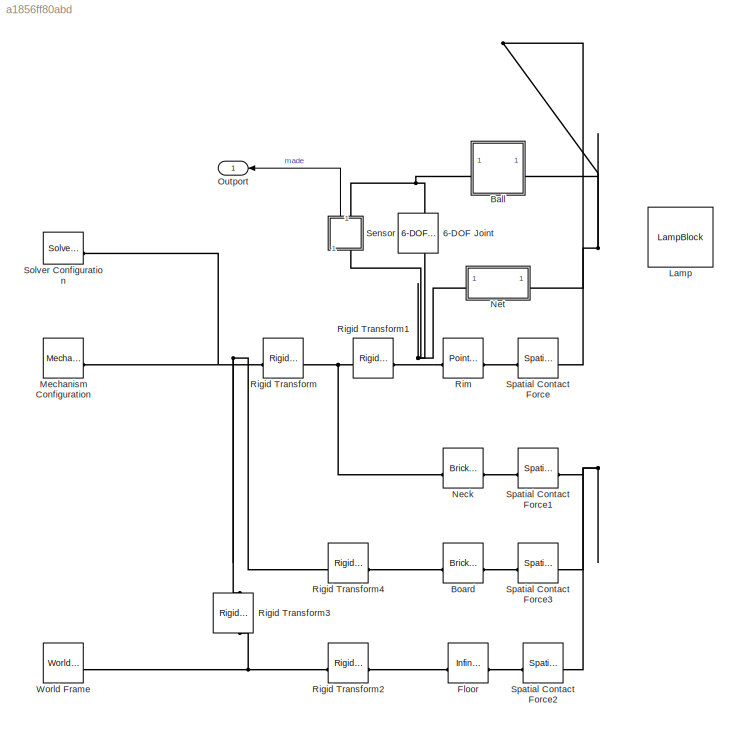
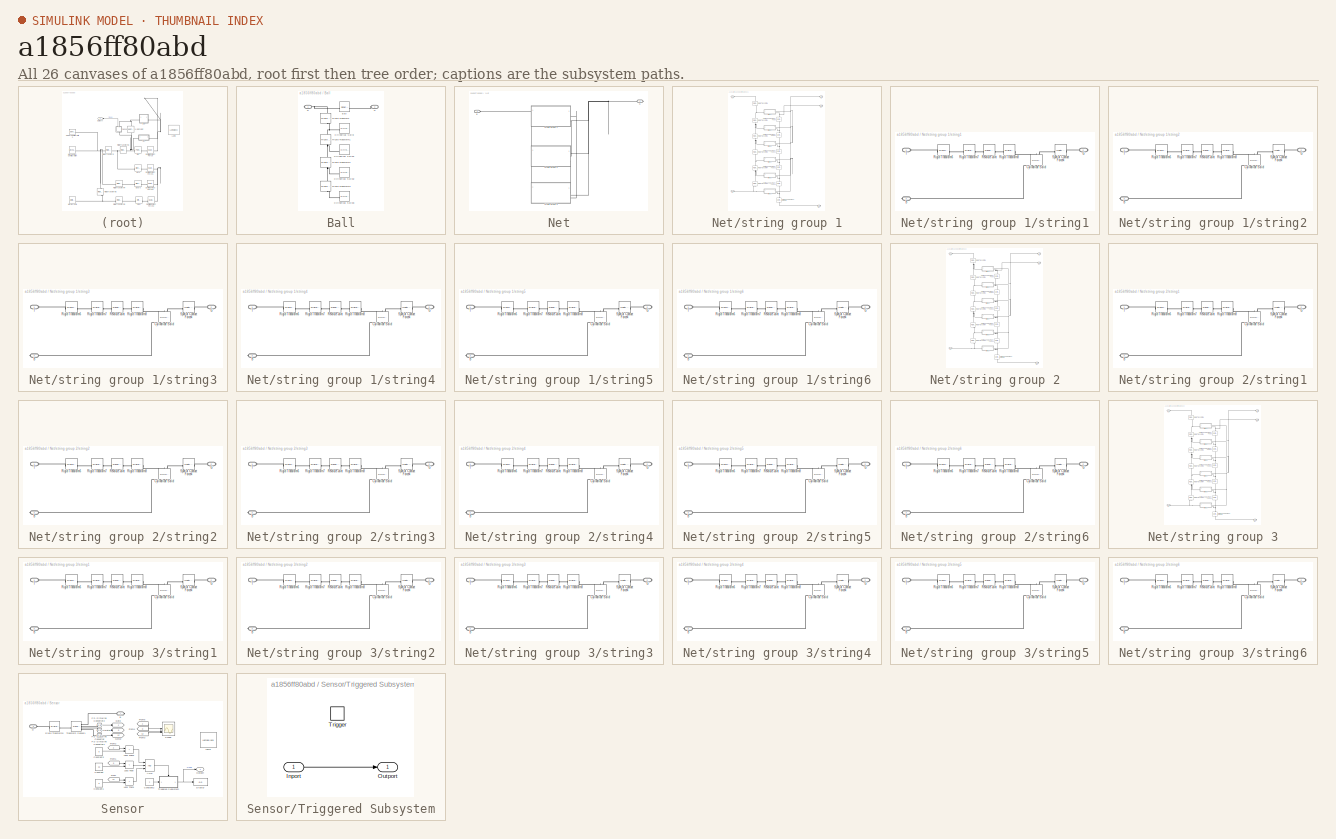
[diagram: thumbnail index - all 26 canvases of the model, root first then tree order]
MODEL slx_a1856ff80abd
KIND model
CONFIG AbsTol = 1e-3
CONFIG EnableMultiTasking = on
CONFIG FixedStep = auto
CONFIG MaxStep = 0.02
CONFIG MinStep = auto
CONFIG PreLoadFcn = init_basketball_shooting;
CONFIG RelTol = 1e-3
CONFIG SampleTimeConstraint = Unconstrained
CONFIG SolverName = VariableStepAuto
CONFIG StartTime = 0.0
CONFIG StopTime = 4
BLOCK [Reference] 6-DOF Joint  REF=sm_lib/Joints/6-DOF Joint
  NameLocation = right
  SourceBlock = sm_lib/Joints/6-DOF Joint
  SourceType = 6-DOF Joint
BLOCK [SubSystem] Ball
BLOCK [Reference] Ball/Ball  REF=sm_lib/Body Elements/Spherical Solid
  SourceBlock = sm_lib/Body Elements/Spherical Solid
  SourceType = Spherical Solid
BLOCK [Reference] Ball/Cylindrical Solid  REF=sm_lib/Body Elements/Cylindrical Solid
  SourceBlock = sm_lib/Body Elements/Cylindrical Solid
  SourceType = Cylindrical Solid
BLOCK [Reference] Ball/Cylindrical Solid1  REF=sm_lib/Body Elements/Cylindrical Solid
  SourceBlock = sm_lib/Body Elements/Cylindrical Solid
  SourceType = Cylindrical Solid
BLOCK [Reference] Ball/Cylindrical Solid2  REF=sm_lib/Body Elements/Cylindrical Solid
  SourceBlock = sm_lib/Body Elements/Cylindrical Solid
  SourceType = Cylindrical Solid
BLOCK [Reference] Ball/Cylindrical Solid3  REF=sm_lib/Body Elements/Cylindrical Solid
  SourceBlock = sm_lib/Body Elements/Cylindrical Solid
  SourceType = Cylindrical Solid
BLOCK [PMIOPort] Ball/G
  Port = 2
  Side = Left
BLOCK [PMIOPort] Ball/R
  Side = Right
BLOCK [Reference] Ball/Rigid Transform  REF=sm_lib/Frames and
Transforms/Rigid
Transform
  NameLocation = left
  SourceBlock = sm_lib/Frames and\nTransforms/Rigid\nTransform
  SourceType = Rigid\nTransform
BLOCK [Reference] Ball/Rigid Transform1  REF=sm_lib/Frames and
Transforms/Rigid
Transform
  NameLocation = left
  SourceBlock = sm_lib/Frames and\nTransforms/Rigid\nTransform
  SourceType = Rigid\nTransform
BLOCK [Reference] Ball/Rigid Transform2  REF=sm_lib/Frames and
Transforms/Rigid
Transform
  NameLocation = left
  SourceBlock = sm_lib/Frames and\nTransforms/Rigid\nTransform
  SourceType = Rigid\nTransform
BLOCK [Reference] Ball/Rigid Transform3  REF=sm_lib/Frames and
Transforms/Rigid
Transform
  NameLocation = left
  SourceBlock = sm_lib/Frames and\nTransforms/Rigid\nTransform
  SourceType = Rigid\nTransform
BLOCK [Reference] Board  REF=sm_lib/Body Elements/Brick Solid
  NameLocation = top
  SourceBlock = sm_lib/Body Elements/Brick Solid
  SourceType = Brick Solid
BLOCK [Reference] Floor  REF=sm_lib/Curves and Surfaces/Infinite Plane
  SourceBlock = sm_lib/Curves and Surfaces/Infinite Plane
  SourceType = Infinite Plane
BLOCK [LampBlock] Lamp
  LabelPosition = Hide
BLOCK [Reference] Mechanism Configuration  REF=sm_lib/Utilities/Mechanism
Configuration
  SourceBlock = sm_lib/Utilities/Mechanism\nConfiguration
  SourceType = Mechanism\nConfiguration
BLOCK [Reference] Neck  REF=sm_lib/Body Elements/Brick Solid
  NameLocation = top
  SourceBlock = sm_lib/Body Elements/Brick Solid
  SourceType = Brick Solid
BLOCK [SubSystem] Net
BLOCK [PMIOPort] Net/B
  Side = Left
BLOCK [PMIOPort] Net/G
  Port = 2
  Side = Right
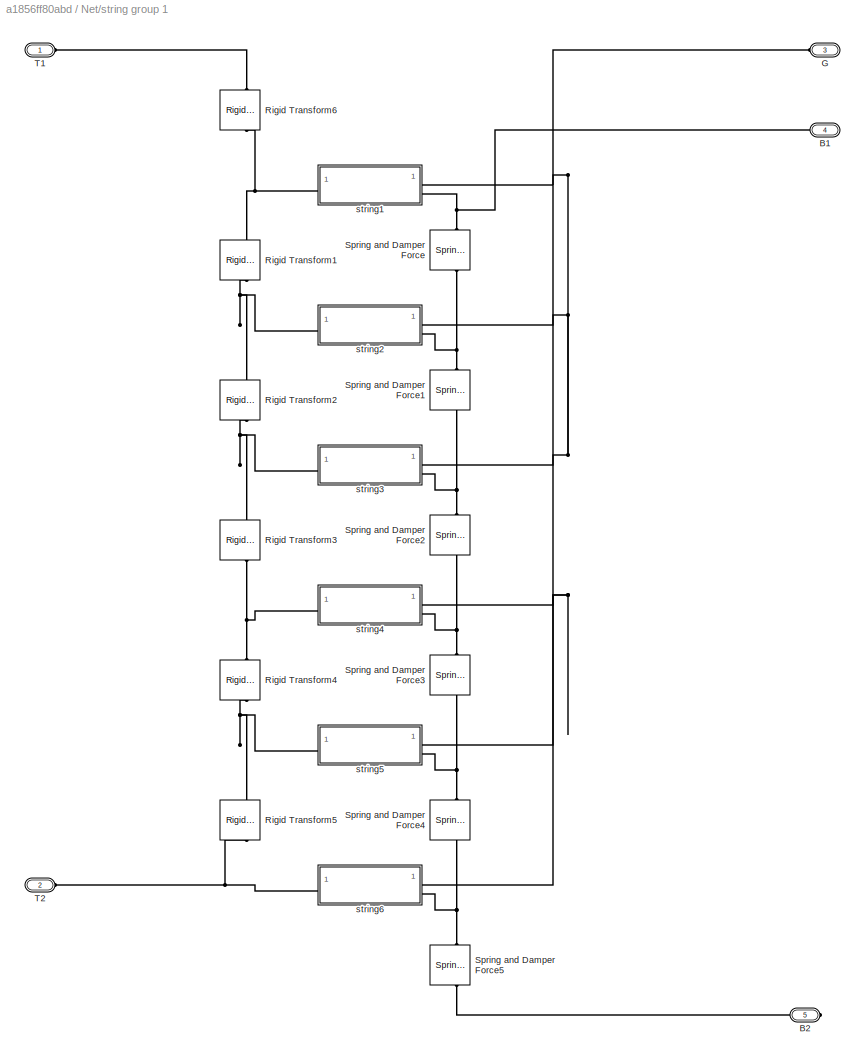
BLOCK [SubSystem] Net/string group 1
  PortSchema = {"entries":[{"content":{"sides":[{"content":{"connectorIds":["LConn1","LConn2"]},"type":"ConnectorPlacement.EquallySpacedRectSide","uuid":"b13673be-0a57-4524-a2b1-8a728f45848c"},{"content":{"connectorIds":["RConn1","RConn2"],"side":"RIGHT"},"type":"ConnectorPlacement.EquallySpacedRectSide","uuid":"7cf6da37-d5e0-4fb1-966f-7f74bd764fc3"},{"content":{"connectorIds":["LConn3"],"side":"TOP"},"type":"Co...<+271ch>  <repeated x3 — deduplicated; at blocks: string group 1, string group 2, string group 3>
BLOCK [PMIOPort] Net/string group 1/B1
  Port = 4
  Side = Right
BLOCK [PMIOPort] Net/string group 1/B2
  Port = 5
  Side = Right
BLOCK [PMIOPort] Net/string group 1/G
  Port = 3
  Side = Left
BLOCK [Reference] Net/string group 1/Rigid Transform1  REF=sm_lib/Frames and
Transforms/Rigid
Transform
  NameLocation = left
  SourceBlock = sm_lib/Frames and\nTransforms/Rigid\nTransform
  SourceType = Rigid\nTransform
BLOCK [Reference] Net/string group 1/Rigid Transform2  REF=sm_lib/Frames and
Transforms/Rigid
Transform
  NameLocation = left
  SourceBlock = sm_lib/Frames and\nTransforms/Rigid\nTransform
  SourceType = Rigid\nTransform
BLOCK [Reference] Net/string group 1/Rigid Transform3  REF=sm_lib/Frames and
Transforms/Rigid
Transform
  NameLocation = left
  SourceBlock = sm_lib/Frames and\nTransforms/Rigid\nTransform
  SourceType = Rigid\nTransform
BLOCK [Reference] Net/string group 1/Rigid Transform4  REF=sm_lib/Frames and
Transforms/Rigid
Transform
  NameLocation = left
  SourceBlock = sm_lib/Frames and\nTransforms/Rigid\nTransform
  SourceType = Rigid\nTransform
BLOCK [Reference] Net/string group 1/Rigid Transform5  REF=sm_lib/Frames and
Transforms/Rigid
Transform
  NameLocation = left
  SourceBlock = sm_lib/Frames and\nTransforms/Rigid\nTransform
  SourceType = Rigid\nTransform
BLOCK [Reference] Net/string group 1/Rigid Transform6  REF=sm_lib/Frames and
Transforms/Rigid
Transform
  NameLocation = left
  SourceBlock = sm_lib/Frames and\nTransforms/Rigid\nTransform
  SourceType = Rigid\nTransform
BLOCK [Reference] Net/string group 1/Spring and Damper Force  REF=sm_lib/Forces and
Torques/Spring and
Damper Force
  NameLocation = left
  SourceBlock = sm_lib/Forces and\nTorques/Spring and\nDamper Force
  SourceType = Spring and\nDamper Force
BLOCK [Reference] Net/string group 1/Spring and Damper Force1  REF=sm_lib/Forces and
Torques/Spring and
Damper Force
  NameLocation = left
  SourceBlock = sm_lib/Forces and\nTorques/Spring and\nDamper Force
  SourceType = Spring and\nDamper Force
BLOCK [Reference] Net/string group 1/Spring and Damper Force2  REF=sm_lib/Forces and
Torques/Spring and
Damper Force
  NameLocation = left
  SourceBlock = sm_lib/Forces and\nTorques/Spring and\nDamper Force
  SourceType = Spring and\nDamper Force
BLOCK [Reference] Net/string group 1/Spring and Damper Force3  REF=sm_lib/Forces and
Torques/Spring and
Damper Force
  NameLocation = left
  SourceBlock = sm_lib/Forces and\nTorques/Spring and\nDamper Force
  SourceType = Spring and\nDamper Force
BLOCK [Reference] Net/string group 1/Spring and Damper Force4  REF=sm_lib/Forces and
Torques/Spring and
Damper Force
  NameLocation = left
  SourceBlock = sm_lib/Forces and\nTorques/Spring and\nDamper Force
  SourceType = Spring and\nDamper Force
BLOCK [Reference] Net/string group 1/Spring and Damper Force5  REF=sm_lib/Forces and
Torques/Spring and
Damper Force
  NameLocation = left
  SourceBlock = sm_lib/Forces and\nTorques/Spring and\nDamper Force
  SourceType = Spring and\nDamper Force
BLOCK [PMIOPort] Net/string group 1/T1
  Side = Left
BLOCK [PMIOPort] Net/string group 1/T2
  Port = 2
  Side = Left
BLOCK [SubSystem] Net/string group 1/string1
BLOCK [PMIOPort] Net/string group 1/string1/B
  Port = 3
  Side = Right
BLOCK [Reference] Net/string group 1/string1/Cylindrical Solid  REF=sm_lib/Body Elements/Cylindrical Solid
  NameLocation = left
  SourceBlock = sm_lib/Body Elements/Cylindrical Solid
  SourceType = Cylindrical Solid
BLOCK [PMIOPort] Net/string group 1/string1/G
  Port = 2
  Side = Right
BLOCK [Reference] Net/string group 1/string1/Revolute Joint  REF=sm_lib/Joints/Revolute Joint
  SourceBlock = sm_lib/Joints/Revolute Joint
  SourceType = Revolute Joint
BLOCK [Reference] Net/string group 1/string1/Rigid Transform6  REF=sm_lib/Frames and
Transforms/Rigid
Transform
  SourceBlock = sm_lib/Frames and\nTransforms/Rigid\nTransform
  SourceType = Rigid\nTransform
BLOCK [Reference] Net/string group 1/string1/Rigid Transform7  REF=sm_lib/Frames and
Transforms/Rigid
Transform
  SourceBlock = sm_lib/Frames and\nTransforms/Rigid\nTransform
  SourceType = Rigid\nTransform
BLOCK [Reference] Net/string group 1/string1/Rigid Transform8  REF=sm_lib/Frames and
Transforms/Rigid
Transform
  SourceBlock = sm_lib/Frames and\nTransforms/Rigid\nTransform
  SourceType = Rigid\nTransform
BLOCK [Reference] Net/string group 1/string1/Spatial Contact Force4  REF=sm_lib/Forces and
Torques/Spatial
Contact Force
  NameLocation = top
  SourceBlock = sm_lib/Forces and\nTorques/Spatial\nContact Force
  SourceType = Spatial\nContact Force
BLOCK [PMIOPort] Net/string group 1/string1/T
  Side = Left
BLOCK [SubSystem] Net/string group 1/string2
BLOCK [PMIOPort] Net/string group 1/string2/B
  Port = 3
  Side = Right
BLOCK [Reference] Net/string group 1/string2/Cylindrical Solid  REF=sm_lib/Body Elements/Cylindrical Solid
  NameLocation = left
  SourceBlock = sm_lib/Body Elements/Cylindrical Solid
  SourceType = Cylindrical Solid
BLOCK [PMIOPort] Net/string group 1/string2/G
  Port = 2
  Side = Right
BLOCK [Reference] Net/string group 1/string2/Revolute Joint  REF=sm_lib/Joints/Revolute Joint
  SourceBlock = sm_lib/Joints/Revolute Joint
  SourceType = Revolute Joint
BLOCK [Reference] Net/string group 1/string2/Rigid Transform6  REF=sm_lib/Frames and
Transforms/Rigid
Transform
  SourceBlock = sm_lib/Frames and\nTransforms/Rigid\nTransform
  SourceType = Rigid\nTransform
BLOCK [Reference] Net/string group 1/string2/Rigid Transform7  REF=sm_lib/Frames and
Transforms/Rigid
Transform
  SourceBlock = sm_lib/Frames and\nTransforms/Rigid\nTransform
  SourceType = Rigid\nTransform
BLOCK [Reference] Net/string group 1/string2/Rigid Transform8  REF=sm_lib/Frames and
Transforms/Rigid
Transform
  SourceBlock = sm_lib/Frames and\nTransforms/Rigid\nTransform
  SourceType = Rigid\nTransform
BLOCK [Reference] Net/string group 1/string2/Spatial Contact Force4  REF=sm_lib/Forces and
Torques/Spatial
Contact Force
  NameLocation = top
  SourceBlock = sm_lib/Forces and\nTorques/Spatial\nContact Force
  SourceType = Spatial\nContact Force
BLOCK [PMIOPort] Net/string group 1/string2/T
  Side = Left
BLOCK [SubSystem] Net/string group 1/string3
BLOCK [PMIOPort] Net/string group 1/string3/B
  Port = 3
  Side = Right
BLOCK [Reference] Net/string group 1/string3/Cylindrical Solid  REF=sm_lib/Body Elements/Cylindrical Solid
  NameLocation = left
  SourceBlock = sm_lib/Body Elements/Cylindrical Solid
  SourceType = Cylindrical Solid
BLOCK [PMIOPort] Net/string group 1/string3/G
  Port = 2
  Side = Right
BLOCK [Reference] Net/string group 1/string3/Revolute Joint  REF=sm_lib/Joints/Revolute Joint
  SourceBlock = sm_lib/Joints/Revolute Joint
  SourceType = Revolute Joint
BLOCK [Reference] Net/string group 1/string3/Rigid Transform6  REF=sm_lib/Frames and
Transforms/Rigid
Transform
  SourceBlock = sm_lib/Frames and\nTransforms/Rigid\nTransform
  SourceType = Rigid\nTransform
BLOCK [Reference] Net/string group 1/string3/Rigid Transform7  REF=sm_lib/Frames and
Transforms/Rigid
Transform
  SourceBlock = sm_lib/Frames and\nTransforms/Rigid\nTransform
  SourceType = Rigid\nTransform
BLOCK [Reference] Net/string group 1/string3/Rigid Transform8  REF=sm_lib/Frames and
Transforms/Rigid
Transform
  SourceBlock = sm_lib/Frames and\nTransforms/Rigid\nTransform
  SourceType = Rigid\nTransform
BLOCK [Reference] Net/string group 1/string3/Spatial Contact Force4  REF=sm_lib/Forces and
Torques/Spatial
Contact Force
  NameLocation = top
  SourceBlock = sm_lib/Forces and\nTorques/Spatial\nContact Force
  SourceType = Spatial\nContact Force
BLOCK [PMIOPort] Net/string group 1/string3/T
  Side = Left
BLOCK [SubSystem] Net/string group 1/string4
BLOCK [PMIOPort] Net/string group 1/string4/B
  Port = 3
  Side = Right
BLOCK [Reference] Net/string group 1/string4/Cylindrical Solid  REF=sm_lib/Body Elements/Cylindrical Solid
  NameLocation = left
  SourceBlock = sm_lib/Body Elements/Cylindrical Solid
  SourceType = Cylindrical Solid
BLOCK [PMIOPort] Net/string group 1/string4/G
  Port = 2
  Side = Right
BLOCK [Reference] Net/string group 1/string4/Revolute Joint  REF=sm_lib/Joints/Revolute Joint
  SourceBlock = sm_lib/Joints/Revolute Joint
  SourceType = Revolute Joint
BLOCK [Reference] Net/string group 1/string4/Rigid Transform6  REF=sm_lib/Frames and
Transforms/Rigid
Transform
  SourceBlock = sm_lib/Frames and\nTransforms/Rigid\nTransform
  SourceType = Rigid\nTransform
BLOCK [Reference] Net/string group 1/string4/Rigid Transform7  REF=sm_lib/Frames and
Transforms/Rigid
Transform
  SourceBlock = sm_lib/Frames and\nTransforms/Rigid\nTransform
  SourceType = Rigid\nTransform
BLOCK [Reference] Net/string group 1/string4/Rigid Transform8  REF=sm_lib/Frames and
Transforms/Rigid
Transform
  SourceBlock = sm_lib/Frames and\nTransforms/Rigid\nTransform
  SourceType = Rigid\nTransform
BLOCK [Reference] Net/string group 1/string4/Spatial Contact Force4  REF=sm_lib/Forces and
Torques/Spatial
Contact Force
  NameLocation = top
  SourceBlock = sm_lib/Forces and\nTorques/Spatial\nContact Force
  SourceType = Spatial\nContact Force
BLOCK [PMIOPort] Net/string group 1/string4/T
  Side = Left
BLOCK [SubSystem] Net/string group 1/string5
BLOCK [PMIOPort] Net/string group 1/string5/B
  Port = 3
  Side = Right
BLOCK [Reference] Net/string group 1/string5/Cylindrical Solid  REF=sm_lib/Body Elements/Cylindrical Solid
  NameLocation = left
  SourceBlock = sm_lib/Body Elements/Cylindrical Solid
  SourceType = Cylindrical Solid
BLOCK [PMIOPort] Net/string group 1/string5/G
  Port = 2
  Side = Right
BLOCK [Reference] Net/string group 1/string5/Revolute Joint  REF=sm_lib/Joints/Revolute Joint
  SourceBlock = sm_lib/Joints/Revolute Joint
  SourceType = Revolute Joint
BLOCK [Reference] Net/string group 1/string5/Rigid Transform6  REF=sm_lib/Frames and
Transforms/Rigid
Transform
  SourceBlock = sm_lib/Frames and\nTransforms/Rigid\nTransform
  SourceType = Rigid\nTransform
BLOCK [Reference] Net/string group 1/string5/Rigid Transform7  REF=sm_lib/Frames and
Transforms/Rigid
Transform
  SourceBlock = sm_lib/Frames and\nTransforms/Rigid\nTransform
  SourceType = Rigid\nTransform
BLOCK [Reference] Net/string group 1/string5/Rigid Transform8  REF=sm_lib/Frames and
Transforms/Rigid
Transform
  SourceBlock = sm_lib/Frames and\nTransforms/Rigid\nTransform
  SourceType = Rigid\nTransform
BLOCK [Reference] Net/string group 1/string5/Spatial Contact Force4  REF=sm_lib/Forces and
Torques/Spatial
Contact Force
  NameLocation = top
  SourceBlock = sm_lib/Forces and\nTorques/Spatial\nContact Force
  SourceType = Spatial\nContact Force
BLOCK [PMIOPort] Net/string group 1/string5/T
  Side = Left
BLOCK [SubSystem] Net/string group 1/string6
BLOCK [PMIOPort] Net/string group 1/string6/B
  Port = 3
  Side = Right
BLOCK [Reference] Net/string group 1/string6/Cylindrical Solid  REF=sm_lib/Body Elements/Cylindrical Solid
  NameLocation = left
  SourceBlock = sm_lib/Body Elements/Cylindrical Solid
  SourceType = Cylindrical Solid
BLOCK [PMIOPort] Net/string group 1/string6/G
  Port = 2
  Side = Right
BLOCK [Reference] Net/string group 1/string6/Revolute Joint  REF=sm_lib/Joints/Revolute Joint
  SourceBlock = sm_lib/Joints/Revolute Joint
  SourceType = Revolute Joint
BLOCK [Reference] Net/string group 1/string6/Rigid Transform6  REF=sm_lib/Frames and
Transforms/Rigid
Transform
  SourceBlock = sm_lib/Frames and\nTransforms/Rigid\nTransform
  SourceType = Rigid\nTransform
BLOCK [Reference] Net/string group 1/string6/Rigid Transform7  REF=sm_lib/Frames and
Transforms/Rigid
Transform
  SourceBlock = sm_lib/Frames and\nTransforms/Rigid\nTransform
  SourceType = Rigid\nTransform
BLOCK [Reference] Net/string group 1/string6/Rigid Transform8  REF=sm_lib/Frames and
Transforms/Rigid
Transform
  SourceBlock = sm_lib/Frames and\nTransforms/Rigid\nTransform
  SourceType = Rigid\nTransform
BLOCK [Reference] Net/string group 1/string6/Spatial Contact Force4  REF=sm_lib/Forces and
Torques/Spatial
Contact Force
  NameLocation = top
  SourceBlock = sm_lib/Forces and\nTorques/Spatial\nContact Force
  SourceType = Spatial\nContact Force
BLOCK [PMIOPort] Net/string group 1/string6/T
  Side = Left
BLOCK [SubSystem] Net/string group 2
BLOCK [PMIOPort] Net/string group 2/B1
  Port = 4
  Side = Right
BLOCK [PMIOPort] Net/string group 2/B2
  Port = 5
  Side = Right
BLOCK [PMIOPort] Net/string group 2/G
  Port = 3
  Side = Left
BLOCK [Reference] Net/string group 2/Rigid Transform1  REF=sm_lib/Frames and
Transforms/Rigid
Transform
  NameLocation = left
  SourceBlock = sm_lib/Frames and\nTransforms/Rigid\nTransform
  SourceType = Rigid\nTransform
BLOCK [Reference] Net/string group 2/Rigid Transform2  REF=sm_lib/Frames and
Transforms/Rigid
Transform
  NameLocation = left
  SourceBlock = sm_lib/Frames and\nTransforms/Rigid\nTransform
  SourceType = Rigid\nTransform
BLOCK [Reference] Net/string group 2/Rigid Transform3  REF=sm_lib/Frames and
Transforms/Rigid
Transform
  NameLocation = left
  SourceBlock = sm_lib/Frames and\nTransforms/Rigid\nTransform
  SourceType = Rigid\nTransform
BLOCK [Reference] Net/string group 2/Rigid Transform4  REF=sm_lib/Frames and
Transforms/Rigid
Transform
  NameLocation = left
  SourceBlock = sm_lib/Frames and\nTransforms/Rigid\nTransform
  SourceType = Rigid\nTransform
BLOCK [Reference] Net/string group 2/Rigid Transform5  REF=sm_lib/Frames and
Transforms/Rigid
Transform
  NameLocation = left
  SourceBlock = sm_lib/Frames and\nTransforms/Rigid\nTransform
  SourceType = Rigid\nTransform
BLOCK [Reference] Net/string group 2/Rigid Transform6  REF=sm_lib/Frames and
Transforms/Rigid
Transform
  NameLocation = left
  SourceBlock = sm_lib/Frames and\nTransforms/Rigid\nTransform
  SourceType = Rigid\nTransform
BLOCK [Reference] Net/string group 2/Spring and Damper Force  REF=sm_lib/Forces and
Torques/Spring and
Damper Force
  NameLocation = left
  SourceBlock = sm_lib/Forces and\nTorques/Spring and\nDamper Force
  SourceType = Spring and\nDamper Force
BLOCK [Reference] Net/string group 2/Spring and Damper Force1  REF=sm_lib/Forces and
Torques/Spring and
Damper Force
  NameLocation = left
  SourceBlock = sm_lib/Forces and\nTorques/Spring and\nDamper Force
  SourceType = Spring and\nDamper Force
BLOCK [Reference] Net/string group 2/Spring and Damper Force2  REF=sm_lib/Forces and
Torques/Spring and
Damper Force
  NameLocation = left
  SourceBlock = sm_lib/Forces and\nTorques/Spring and\nDamper Force
  SourceType = Spring and\nDamper Force
BLOCK [Reference] Net/string group 2/Spring and Damper Force3  REF=sm_lib/Forces and
Torques/Spring and
Damper Force
  NameLocation = left
  SourceBlock = sm_lib/Forces and\nTorques/Spring and\nDamper Force
  SourceType = Spring and\nDamper Force
BLOCK [Reference] Net/string group 2/Spring and Damper Force4  REF=sm_lib/Forces and
Torques/Spring and
Damper Force
  NameLocation = left
  SourceBlock = sm_lib/Forces and\nTorques/Spring and\nDamper Force
  SourceType = Spring and\nDamper Force
BLOCK [Reference] Net/string group 2/Spring and Damper Force5  REF=sm_lib/Forces and
Torques/Spring and
Damper Force
  NameLocation = left
  SourceBlock = sm_lib/Forces and\nTorques/Spring and\nDamper Force
  SourceType = Spring and\nDamper Force
BLOCK [PMIOPort] Net/string group 2/T1
  Side = Left
BLOCK [PMIOPort] Net/string group 2/T2
  Port = 2
  Side = Left
BLOCK [SubSystem] Net/string group 2/string1
BLOCK [PMIOPort] Net/string group 2/string1/B
  Port = 3
  Side = Right
BLOCK [Reference] Net/string group 2/string1/Cylindrical Solid  REF=sm_lib/Body Elements/Cylindrical Solid
  NameLocation = left
  SourceBlock = sm_lib/Body Elements/Cylindrical Solid
  SourceType = Cylindrical Solid
BLOCK [PMIOPort] Net/string group 2/string1/G
  Port = 2
  Side = Right
BLOCK [Reference] Net/string group 2/string1/Revolute Joint  REF=sm_lib/Joints/Revolute Joint
  SourceBlock = sm_lib/Joints/Revolute Joint
  SourceType = Revolute Joint
BLOCK [Reference] Net/string group 2/string1/Rigid Transform6  REF=sm_lib/Frames and
Transforms/Rigid
Transform
  SourceBlock = sm_lib/Frames and\nTransforms/Rigid\nTransform
  SourceType = Rigid\nTransform
BLOCK [Reference] Net/string group 2/string1/Rigid Transform7  REF=sm_lib/Frames and
Transforms/Rigid
Transform
  SourceBlock = sm_lib/Frames and\nTransforms/Rigid\nTransform
  SourceType = Rigid\nTransform
BLOCK [Reference] Net/string group 2/string1/Rigid Transform8  REF=sm_lib/Frames and
Transforms/Rigid
Transform
  SourceBlock = sm_lib/Frames and\nTransforms/Rigid\nTransform
  SourceType = Rigid\nTransform
BLOCK [Reference] Net/string group 2/string1/Spatial Contact Force4  REF=sm_lib/Forces and
Torques/Spatial
Contact Force
  NameLocation = top
  SourceBlock = sm_lib/Forces and\nTorques/Spatial\nContact Force
  SourceType = Spatial\nContact Force
BLOCK [PMIOPort] Net/string group 2/string1/T
  Side = Left
BLOCK [SubSystem] Net/string group 2/string2
BLOCK [PMIOPort] Net/string group 2/string2/B
  Port = 3
  Side = Right
BLOCK [Reference] Net/string group 2/string2/Cylindrical Solid  REF=sm_lib/Body Elements/Cylindrical Solid
  NameLocation = left
  SourceBlock = sm_lib/Body Elements/Cylindrical Solid
  SourceType = Cylindrical Solid
BLOCK [PMIOPort] Net/string group 2/string2/G
  Port = 2
  Side = Right
BLOCK [Reference] Net/string group 2/string2/Revolute Joint  REF=sm_lib/Joints/Revolute Joint
  SourceBlock = sm_lib/Joints/Revolute Joint
  SourceType = Revolute Joint
BLOCK [Reference] Net/string group 2/string2/Rigid Transform6  REF=sm_lib/Frames and
Transforms/Rigid
Transform
  SourceBlock = sm_lib/Frames and\nTransforms/Rigid\nTransform
  SourceType = Rigid\nTransform
BLOCK [Reference] Net/string group 2/string2/Rigid Transform7  REF=sm_lib/Frames and
Transforms/Rigid
Transform
  SourceBlock = sm_lib/Frames and\nTransforms/Rigid\nTransform
  SourceType = Rigid\nTransform
BLOCK [Reference] Net/string group 2/string2/Rigid Transform8  REF=sm_lib/Frames and
Transforms/Rigid
Transform
  SourceBlock = sm_lib/Frames and\nTransforms/Rigid\nTransform
  SourceType = Rigid\nTransform
BLOCK [Reference] Net/string group 2/string2/Spatial Contact Force4  REF=sm_lib/Forces and
Torques/Spatial
Contact Force
  NameLocation = top
  SourceBlock = sm_lib/Forces and\nTorques/Spatial\nContact Force
  SourceType = Spatial\nContact Force
BLOCK [PMIOPort] Net/string group 2/string2/T
  Side = Left
BLOCK [SubSystem] Net/string group 2/string3
BLOCK [PMIOPort] Net/string group 2/string3/B
  Port = 3
  Side = Right
BLOCK [Reference] Net/string group 2/string3/Cylindrical Solid  REF=sm_lib/Body Elements/Cylindrical Solid
  NameLocation = left
  SourceBlock = sm_lib/Body Elements/Cylindrical Solid
  SourceType = Cylindrical Solid
BLOCK [PMIOPort] Net/string group 2/string3/G
  Port = 2
  Side = Right
BLOCK [Reference] Net/string group 2/string3/Revolute Joint  REF=sm_lib/Joints/Revolute Joint
  SourceBlock = sm_lib/Joints/Revolute Joint
  SourceType = Revolute Joint
BLOCK [Reference] Net/string group 2/string3/Rigid Transform6  REF=sm_lib/Frames and
Transforms/Rigid
Transform
  SourceBlock = sm_lib/Frames and\nTransforms/Rigid\nTransform
  SourceType = Rigid\nTransform
BLOCK [Reference] Net/string group 2/string3/Rigid Transform7  REF=sm_lib/Frames and
Transforms/Rigid
Transform
  SourceBlock = sm_lib/Frames and\nTransforms/Rigid\nTransform
  SourceType = Rigid\nTransform
BLOCK [Reference] Net/string group 2/string3/Rigid Transform8  REF=sm_lib/Frames and
Transforms/Rigid
Transform
  SourceBlock = sm_lib/Frames and\nTransforms/Rigid\nTransform
  SourceType = Rigid\nTransform
BLOCK [Reference] Net/string group 2/string3/Spatial Contact Force4  REF=sm_lib/Forces and
Torques/Spatial
Contact Force
  NameLocation = top
  SourceBlock = sm_lib/Forces and\nTorques/Spatial\nContact Force
  SourceType = Spatial\nContact Force
BLOCK [PMIOPort] Net/string group 2/string3/T
  Side = Left
BLOCK [SubSystem] Net/string group 2/string4
BLOCK [PMIOPort] Net/string group 2/string4/B
  Port = 3
  Side = Right
BLOCK [Reference] Net/string group 2/string4/Cylindrical Solid  REF=sm_lib/Body Elements/Cylindrical Solid
  NameLocation = left
  SourceBlock = sm_lib/Body Elements/Cylindrical Solid
  SourceType = Cylindrical Solid
BLOCK [PMIOPort] Net/string group 2/string4/G
  Port = 2
  Side = Right
BLOCK [Reference] Net/string group 2/string4/Revolute Joint  REF=sm_lib/Joints/Revolute Joint
  SourceBlock = sm_lib/Joints/Revolute Joint
  SourceType = Revolute Joint
BLOCK [Reference] Net/string group 2/string4/Rigid Transform6  REF=sm_lib/Frames and
Transforms/Rigid
Transform
  SourceBlock = sm_lib/Frames and\nTransforms/Rigid\nTransform
  SourceType = Rigid\nTransform
BLOCK [Reference] Net/string group 2/string4/Rigid Transform7  REF=sm_lib/Frames and
Transforms/Rigid
Transform
  SourceBlock = sm_lib/Frames and\nTransforms/Rigid\nTransform
  SourceType = Rigid\nTransform
BLOCK [Reference] Net/string group 2/string4/Rigid Transform8  REF=sm_lib/Frames and
Transforms/Rigid
Transform
  SourceBlock = sm_lib/Frames and\nTransforms/Rigid\nTransform
  SourceType = Rigid\nTransform
BLOCK [Reference] Net/string group 2/string4/Spatial Contact Force4  REF=sm_lib/Forces and
Torques/Spatial
Contact Force
  NameLocation = top
  SourceBlock = sm_lib/Forces and\nTorques/Spatial\nContact Force
  SourceType = Spatial\nContact Force
BLOCK [PMIOPort] Net/string group 2/string4/T
  Side = Left
BLOCK [SubSystem] Net/string group 2/string5
BLOCK [PMIOPort] Net/string group 2/string5/B
  Port = 3
  Side = Right
BLOCK [Reference] Net/string group 2/string5/Cylindrical Solid  REF=sm_lib/Body Elements/Cylindrical Solid
  NameLocation = left
  SourceBlock = sm_lib/Body Elements/Cylindrical Solid
  SourceType = Cylindrical Solid
BLOCK [PMIOPort] Net/string group 2/string5/G
  Port = 2
  Side = Right
BLOCK [Reference] Net/string group 2/string5/Revolute Joint  REF=sm_lib/Joints/Revolute Joint
  SourceBlock = sm_lib/Joints/Revolute Joint
  SourceType = Revolute Joint
BLOCK [Reference] Net/string group 2/string5/Rigid Transform6  REF=sm_lib/Frames and
Transforms/Rigid
Transform
  SourceBlock = sm_lib/Frames and\nTransforms/Rigid\nTransform
  SourceType = Rigid\nTransform
BLOCK [Reference] Net/string group 2/string5/Rigid Transform7  REF=sm_lib/Frames and
Transforms/Rigid
Transform
  SourceBlock = sm_lib/Frames and\nTransforms/Rigid\nTransform
  SourceType = Rigid\nTransform
BLOCK [Reference] Net/string group 2/string5/Rigid Transform8  REF=sm_lib/Frames and
Transforms/Rigid
Transform
  SourceBlock = sm_lib/Frames and\nTransforms/Rigid\nTransform
  SourceType = Rigid\nTransform
BLOCK [Reference] Net/string group 2/string5/Spatial Contact Force4  REF=sm_lib/Forces and
Torques/Spatial
Contact Force
  NameLocation = top
  SourceBlock = sm_lib/Forces and\nTorques/Spatial\nContact Force
  SourceType = Spatial\nContact Force
BLOCK [PMIOPort] Net/string group 2/string5/T
  Side = Left
BLOCK [SubSystem] Net/string group 2/string6
BLOCK [PMIOPort] Net/string group 2/string6/B
  Port = 3
  Side = Right
BLOCK [Reference] Net/string group 2/string6/Cylindrical Solid  REF=sm_lib/Body Elements/Cylindrical Solid
  NameLocation = left
  SourceBlock = sm_lib/Body Elements/Cylindrical Solid
  SourceType = Cylindrical Solid
BLOCK [PMIOPort] Net/string group 2/string6/G
  Port = 2
  Side = Right
BLOCK [Reference] Net/string group 2/string6/Revolute Joint  REF=sm_lib/Joints/Revolute Joint
  SourceBlock = sm_lib/Joints/Revolute Joint
  SourceType = Revolute Joint
BLOCK [Reference] Net/string group 2/string6/Rigid Transform6  REF=sm_lib/Frames and
Transforms/Rigid
Transform
  SourceBlock = sm_lib/Frames and\nTransforms/Rigid\nTransform
  SourceType = Rigid\nTransform
BLOCK [Reference] Net/string group 2/string6/Rigid Transform7  REF=sm_lib/Frames and
Transforms/Rigid
Transform
  SourceBlock = sm_lib/Frames and\nTransforms/Rigid\nTransform
  SourceType = Rigid\nTransform
BLOCK [Reference] Net/string group 2/string6/Rigid Transform8  REF=sm_lib/Frames and
Transforms/Rigid
Transform
  SourceBlock = sm_lib/Frames and\nTransforms/Rigid\nTransform
  SourceType = Rigid\nTransform
BLOCK [Reference] Net/string group 2/string6/Spatial Contact Force4  REF=sm_lib/Forces and
Torques/Spatial
Contact Force
  NameLocation = top
  SourceBlock = sm_lib/Forces and\nTorques/Spatial\nContact Force
  SourceType = Spatial\nContact Force
BLOCK [PMIOPort] Net/string group 2/string6/T
  Side = Left
BLOCK [SubSystem] Net/string group 3
BLOCK [PMIOPort] Net/string group 3/B1
  Port = 4
  Side = Right
BLOCK [PMIOPort] Net/string group 3/B2
  Port = 5
  Side = Right
BLOCK [PMIOPort] Net/string group 3/G
  Port = 3
  Side = Left
BLOCK [Reference] Net/string group 3/Rigid Transform1  REF=sm_lib/Frames and
Transforms/Rigid
Transform
  NameLocation = left
  SourceBlock = sm_lib/Frames and\nTransforms/Rigid\nTransform
  SourceType = Rigid\nTransform
BLOCK [Reference] Net/string group 3/Rigid Transform2  REF=sm_lib/Frames and
Transforms/Rigid
Transform
  NameLocation = left
  SourceBlock = sm_lib/Frames and\nTransforms/Rigid\nTransform
  SourceType = Rigid\nTransform
BLOCK [Reference] Net/string group 3/Rigid Transform3  REF=sm_lib/Frames and
Transforms/Rigid
Transform
  NameLocation = left
  SourceBlock = sm_lib/Frames and\nTransforms/Rigid\nTransform
  SourceType = Rigid\nTransform
BLOCK [Reference] Net/string group 3/Rigid Transform4  REF=sm_lib/Frames and
Transforms/Rigid
Transform
  NameLocation = left
  SourceBlock = sm_lib/Frames and\nTransforms/Rigid\nTransform
  SourceType = Rigid\nTransform
BLOCK [Reference] Net/string group 3/Rigid Transform5  REF=sm_lib/Frames and
Transforms/Rigid
Transform
  NameLocation = left
  SourceBlock = sm_lib/Frames and\nTransforms/Rigid\nTransform
  SourceType = Rigid\nTransform
BLOCK [Reference] Net/string group 3/Rigid Transform6  REF=sm_lib/Frames and
Transforms/Rigid
Transform
  NameLocation = left
  SourceBlock = sm_lib/Frames and\nTransforms/Rigid\nTransform
  SourceType = Rigid\nTransform
BLOCK [Reference] Net/string group 3/Spring and Damper Force  REF=sm_lib/Forces and
Torques/Spring and
Damper Force
  NameLocation = left
  SourceBlock = sm_lib/Forces and\nTorques/Spring and\nDamper Force
  SourceType = Spring and\nDamper Force
BLOCK [Reference] Net/string group 3/Spring and Damper Force1  REF=sm_lib/Forces and
Torques/Spring and
Damper Force
  NameLocation = left
  SourceBlock = sm_lib/Forces and\nTorques/Spring and\nDamper Force
  SourceType = Spring and\nDamper Force
BLOCK [Reference] Net/string group 3/Spring and Damper Force2  REF=sm_lib/Forces and
Torques/Spring and
Damper Force
  NameLocation = left
  SourceBlock = sm_lib/Forces and\nTorques/Spring and\nDamper Force
  SourceType = Spring and\nDamper Force
BLOCK [Reference] Net/string group 3/Spring and Damper Force3  REF=sm_lib/Forces and
Torques/Spring and
Damper Force
  NameLocation = left
  SourceBlock = sm_lib/Forces and\nTorques/Spring and\nDamper Force
  SourceType = Spring and\nDamper Force
BLOCK [Reference] Net/string group 3/Spring and Damper Force4  REF=sm_lib/Forces and
Torques/Spring and
Damper Force
  NameLocation = left
  SourceBlock = sm_lib/Forces and\nTorques/Spring and\nDamper Force
  SourceType = Spring and\nDamper Force
BLOCK [Reference] Net/string group 3/Spring and Damper Force5  REF=sm_lib/Forces and
Torques/Spring and
Damper Force
  NameLocation = left
  SourceBlock = sm_lib/Forces and\nTorques/Spring and\nDamper Force
  SourceType = Spring and\nDamper Force
BLOCK [PMIOPort] Net/string group 3/T1
  Side = Left
BLOCK [PMIOPort] Net/string group 3/T2
  Port = 2
  Side = Left
BLOCK [SubSystem] Net/string group 3/string1
BLOCK [PMIOPort] Net/string group 3/string1/B
  Port = 3
  Side = Right
BLOCK [Reference] Net/string group 3/string1/Cylindrical Solid  REF=sm_lib/Body Elements/Cylindrical Solid
  NameLocation = left
  SourceBlock = sm_lib/Body Elements/Cylindrical Solid
  SourceType = Cylindrical Solid
BLOCK [PMIOPort] Net/string group 3/string1/G
  Port = 2
  Side = Right
BLOCK [Reference] Net/string group 3/string1/Revolute Joint  REF=sm_lib/Joints/Revolute Joint
  SourceBlock = sm_lib/Joints/Revolute Joint
  SourceType = Revolute Joint
BLOCK [Reference] Net/string group 3/string1/Rigid Transform6  REF=sm_lib/Frames and
Transforms/Rigid
Transform
  SourceBlock = sm_lib/Frames and\nTransforms/Rigid\nTransform
  SourceType = Rigid\nTransform
BLOCK [Reference] Net/string group 3/string1/Rigid Transform7  REF=sm_lib/Frames and
Transforms/Rigid
Transform
  SourceBlock = sm_lib/Frames and\nTransforms/Rigid\nTransform
  SourceType = Rigid\nTransform
BLOCK [Reference] Net/string group 3/string1/Rigid Transform8  REF=sm_lib/Frames and
Transforms/Rigid
Transform
  SourceBlock = sm_lib/Frames and\nTransforms/Rigid\nTransform
  SourceType = Rigid\nTransform
BLOCK [Reference] Net/string group 3/string1/Spatial Contact Force4  REF=sm_lib/Forces and
Torques/Spatial
Contact Force
  NameLocation = top
  SourceBlock = sm_lib/Forces and\nTorques/Spatial\nContact Force
  SourceType = Spatial\nContact Force
BLOCK [PMIOPort] Net/string group 3/string1/T
  Side = Left
BLOCK [SubSystem] Net/string group 3/string2
BLOCK [PMIOPort] Net/string group 3/string2/B
  Port = 3
  Side = Right
BLOCK [Reference] Net/string group 3/string2/Cylindrical Solid  REF=sm_lib/Body Elements/Cylindrical Solid
  NameLocation = left
  SourceBlock = sm_lib/Body Elements/Cylindrical Solid
  SourceType = Cylindrical Solid
BLOCK [PMIOPort] Net/string group 3/string2/G
  Port = 2
  Side = Right
BLOCK [Reference] Net/string group 3/string2/Revolute Joint  REF=sm_lib/Joints/Revolute Joint
  SourceBlock = sm_lib/Joints/Revolute Joint
  SourceType = Revolute Joint
BLOCK [Reference] Net/string group 3/string2/Rigid Transform6  REF=sm_lib/Frames and
Transforms/Rigid
Transform
  SourceBlock = sm_lib/Frames and\nTransforms/Rigid\nTransform
  SourceType = Rigid\nTransform
BLOCK [Reference] Net/string group 3/string2/Rigid Transform7  REF=sm_lib/Frames and
Transforms/Rigid
Transform
  SourceBlock = sm_lib/Frames and\nTransforms/Rigid\nTransform
  SourceType = Rigid\nTransform
BLOCK [Reference] Net/string group 3/string2/Rigid Transform8  REF=sm_lib/Frames and
Transforms/Rigid
Transform
  SourceBlock = sm_lib/Frames and\nTransforms/Rigid\nTransform
  SourceType = Rigid\nTransform
BLOCK [Reference] Net/string group 3/string2/Spatial Contact Force4  REF=sm_lib/Forces and
Torques/Spatial
Contact Force
  NameLocation = top
  SourceBlock = sm_lib/Forces and\nTorques/Spatial\nContact Force
  SourceType = Spatial\nContact Force
BLOCK [PMIOPort] Net/string group 3/string2/T
  Side = Left
BLOCK [SubSystem] Net/string group 3/string3
BLOCK [PMIOPort] Net/string group 3/string3/B
  Port = 3
  Side = Right
BLOCK [Reference] Net/string group 3/string3/Cylindrical Solid  REF=sm_lib/Body Elements/Cylindrical Solid
  NameLocation = left
  SourceBlock = sm_lib/Body Elements/Cylindrical Solid
  SourceType = Cylindrical Solid
BLOCK [PMIOPort] Net/string group 3/string3/G
  Port = 2
  Side = Right
BLOCK [Reference] Net/string group 3/string3/Revolute Joint  REF=sm_lib/Joints/Revolute Joint
  SourceBlock = sm_lib/Joints/Revolute Joint
  SourceType = Revolute Joint
BLOCK [Reference] Net/string group 3/string3/Rigid Transform6  REF=sm_lib/Frames and
Transforms/Rigid
Transform
  SourceBlock = sm_lib/Frames and\nTransforms/Rigid\nTransform
  SourceType = Rigid\nTransform
BLOCK [Reference] Net/string group 3/string3/Rigid Transform7  REF=sm_lib/Frames and
Transforms/Rigid
Transform
  SourceBlock = sm_lib/Frames and\nTransforms/Rigid\nTransform
  SourceType = Rigid\nTransform
BLOCK [Reference] Net/string group 3/string3/Rigid Transform8  REF=sm_lib/Frames and
Transforms/Rigid
Transform
  SourceBlock = sm_lib/Frames and\nTransforms/Rigid\nTransform
  SourceType = Rigid\nTransform
BLOCK [Reference] Net/string group 3/string3/Spatial Contact Force4  REF=sm_lib/Forces and
Torques/Spatial
Contact Force
  NameLocation = top
  SourceBlock = sm_lib/Forces and\nTorques/Spatial\nContact Force
  SourceType = Spatial\nContact Force
BLOCK [PMIOPort] Net/string group 3/string3/T
  Side = Left
BLOCK [SubSystem] Net/string group 3/string4
BLOCK [PMIOPort] Net/string group 3/string4/B
  Port = 3
  Side = Right
BLOCK [Reference] Net/string group 3/string4/Cylindrical Solid  REF=sm_lib/Body Elements/Cylindrical Solid
  NameLocation = left
  SourceBlock = sm_lib/Body Elements/Cylindrical Solid
  SourceType = Cylindrical Solid
BLOCK [PMIOPort] Net/string group 3/string4/G
  Port = 2
  Side = Right
BLOCK [Reference] Net/string group 3/string4/Revolute Joint  REF=sm_lib/Joints/Revolute Joint
  SourceBlock = sm_lib/Joints/Revolute Joint
  SourceType = Revolute Joint
BLOCK [Reference] Net/string group 3/string4/Rigid Transform6  REF=sm_lib/Frames and
Transforms/Rigid
Transform
  SourceBlock = sm_lib/Frames and\nTransforms/Rigid\nTransform
  SourceType = Rigid\nTransform
BLOCK [Reference] Net/string group 3/string4/Rigid Transform7  REF=sm_lib/Frames and
Transforms/Rigid
Transform
  SourceBlock = sm_lib/Frames and\nTransforms/Rigid\nTransform
  SourceType = Rigid\nTransform
BLOCK [Reference] Net/string group 3/string4/Rigid Transform8  REF=sm_lib/Frames and
Transforms/Rigid
Transform
  SourceBlock = sm_lib/Frames and\nTransforms/Rigid\nTransform
  SourceType = Rigid\nTransform
BLOCK [Reference] Net/string group 3/string4/Spatial Contact Force4  REF=sm_lib/Forces and
Torques/Spatial
Contact Force
  NameLocation = top
  SourceBlock = sm_lib/Forces and\nTorques/Spatial\nContact Force
  SourceType = Spatial\nContact Force
BLOCK [PMIOPort] Net/string group 3/string4/T
  Side = Left
BLOCK [SubSystem] Net/string group 3/string5
BLOCK [PMIOPort] Net/string group 3/string5/B
  Port = 3
  Side = Right
BLOCK [Reference] Net/string group 3/string5/Cylindrical Solid  REF=sm_lib/Body Elements/Cylindrical Solid
  NameLocation = left
  SourceBlock = sm_lib/Body Elements/Cylindrical Solid
  SourceType = Cylindrical Solid
BLOCK [PMIOPort] Net/string group 3/string5/G
  Port = 2
  Side = Right
BLOCK [Reference] Net/string group 3/string5/Revolute Joint  REF=sm_lib/Joints/Revolute Joint
  SourceBlock = sm_lib/Joints/Revolute Joint
  SourceType = Revolute Joint
BLOCK [Reference] Net/string group 3/string5/Rigid Transform6  REF=sm_lib/Frames and
Transforms/Rigid
Transform
  SourceBlock = sm_lib/Frames and\nTransforms/Rigid\nTransform
  SourceType = Rigid\nTransform
BLOCK [Reference] Net/string group 3/string5/Rigid Transform7  REF=sm_lib/Frames and
Transforms/Rigid
Transform
  SourceBlock = sm_lib/Frames and\nTransforms/Rigid\nTransform
  SourceType = Rigid\nTransform
BLOCK [Reference] Net/string group 3/string5/Rigid Transform8  REF=sm_lib/Frames and
Transforms/Rigid
Transform
  SourceBlock = sm_lib/Frames and\nTransforms/Rigid\nTransform
  SourceType = Rigid\nTransform
BLOCK [Reference] Net/string group 3/string5/Spatial Contact Force4  REF=sm_lib/Forces and
Torques/Spatial
Contact Force
  NameLocation = top
  SourceBlock = sm_lib/Forces and\nTorques/Spatial\nContact Force
  SourceType = Spatial\nContact Force
BLOCK [PMIOPort] Net/string group 3/string5/T
  Side = Left
BLOCK [SubSystem] Net/string group 3/string6
BLOCK [PMIOPort] Net/string group 3/string6/B
  Port = 3
  Side = Right
BLOCK [Reference] Net/string group 3/string6/Cylindrical Solid  REF=sm_lib/Body Elements/Cylindrical Solid
  NameLocation = left
  SourceBlock = sm_lib/Body Elements/Cylindrical Solid
  SourceType = Cylindrical Solid
BLOCK [PMIOPort] Net/string group 3/string6/G
  Port = 2
  Side = Right
BLOCK [Reference] Net/string group 3/string6/Revolute Joint  REF=sm_lib/Joints/Revolute Joint
  SourceBlock = sm_lib/Joints/Revolute Joint
  SourceType = Revolute Joint
BLOCK [Reference] Net/string group 3/string6/Rigid Transform6  REF=sm_lib/Frames and
Transforms/Rigid
Transform
  SourceBlock = sm_lib/Frames and\nTransforms/Rigid\nTransform
  SourceType = Rigid\nTransform
BLOCK [Reference] Net/string group 3/string6/Rigid Transform7  REF=sm_lib/Frames and
Transforms/Rigid
Transform
  SourceBlock = sm_lib/Frames and\nTransforms/Rigid\nTransform
  SourceType = Rigid\nTransform
BLOCK [Reference] Net/string group 3/string6/Rigid Transform8  REF=sm_lib/Frames and
Transforms/Rigid
Transform
  SourceBlock = sm_lib/Frames and\nTransforms/Rigid\nTransform
  SourceType = Rigid\nTransform
BLOCK [Reference] Net/string group 3/string6/Spatial Contact Force4  REF=sm_lib/Forces and
Torques/Spatial
Contact Force
  NameLocation = top
  SourceBlock = sm_lib/Forces and\nTorques/Spatial\nContact Force
  SourceType = Spatial\nContact Force
BLOCK [PMIOPort] Net/string group 3/string6/T
  Side = Left
BLOCK [Outport] Outport
BLOCK [Reference] Rigid Transform  REF=sm_lib/Frames and
Transforms/Rigid
Transform
  SourceBlock = sm_lib/Frames and\nTransforms/Rigid\nTransform
  SourceType = Rigid\nTransform
BLOCK [Reference] Rigid Transform1  REF=sm_lib/Frames and
Transforms/Rigid
Transform
  SourceBlock = sm_lib/Frames and\nTransforms/Rigid\nTransform
  SourceType = Rigid\nTransform
BLOCK [Reference] Rigid Transform2  REF=sm_lib/Frames and
Transforms/Rigid
Transform
  SourceBlock = sm_lib/Frames and\nTransforms/Rigid\nTransform
  SourceType = Rigid\nTransform
BLOCK [Reference] Rigid Transform3  REF=sm_lib/Frames and
Transforms/Rigid
Transform
  NameLocation = left
  SourceBlock = sm_lib/Frames and\nTransforms/Rigid\nTransform
  SourceType = Rigid\nTransform
BLOCK [Reference] Rigid Transform4  REF=sm_lib/Frames and
Transforms/Rigid
Transform
  SourceBlock = sm_lib/Frames and\nTransforms/Rigid\nTransform
  SourceType = Rigid\nTransform
BLOCK [Reference] Rim  REF=sm_lib/Curves and Surfaces/Point Cloud
  SourceBlock = sm_lib/Curves and Surfaces/Point Cloud
  SourceType = Point Cloud
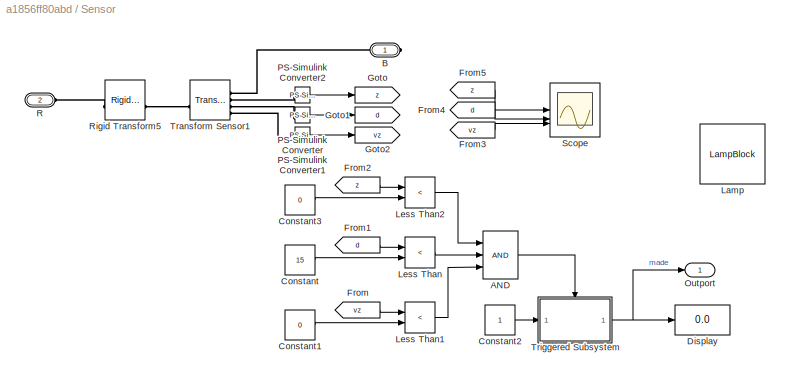
BLOCK [SubSystem] Sensor
  NameLocation = left
BLOCK [Logic] Sensor/AND
  AllPortsSameDT = off
  IconShape = distinctive
  Inputs = 3
  OutDataTypeStr = boolean
BLOCK [PMIOPort] Sensor/B
  Side = Right
BLOCK [Constant] Sensor/Constant
  Value = 15
BLOCK [Constant] Sensor/Constant1
  Value = 0
BLOCK [Constant] Sensor/Constant2
BLOCK [Constant] Sensor/Constant3
  Value = 0
BLOCK [Display] Sensor/Display
  Decimation = 1
BLOCK [From] Sensor/From
  GotoTag = vz
BLOCK [From] Sensor/From1
  GotoTag = d
BLOCK [From] Sensor/From2
  GotoTag = z
BLOCK [From] Sensor/From3
  GotoTag = vz
BLOCK [From] Sensor/From4
  GotoTag = d
BLOCK [From] Sensor/From5
  GotoTag = z
BLOCK [Goto] Sensor/Goto
  GotoTag = z
BLOCK [Goto] Sensor/Goto1
  GotoTag = d
BLOCK [Goto] Sensor/Goto2
  GotoTag = vz
BLOCK [LampBlock] Sensor/Lamp
  LabelPosition = Hide
BLOCK [RelationalOperator] Sensor/Less Than
  InputSameDT = off
  Operator = <
  OutDataTypeStr = boolean
  RndMeth = Simplest
BLOCK [RelationalOperator] Sensor/Less Than1
  InputSameDT = off
  Operator = <
  OutDataTypeStr = boolean
  RndMeth = Simplest
BLOCK [RelationalOperator] Sensor/Less Than2
  InputSameDT = off
  Operator = <
  OutDataTypeStr = boolean
  RndMeth = Simplest
BLOCK [Outport] Sensor/Outport
BLOCK [Reference] Sensor/PS-Simulink Converter  REF=nesl_utility/PS-Simulink
Converter
  SourceBlock = nesl_utility/PS-Simulink\nConverter
  SourceType = PS-Simulink\nConverter
BLOCK [Reference] Sensor/PS-Simulink Converter1  REF=nesl_utility/PS-Simulink
Converter
  SourceBlock = nesl_utility/PS-Simulink\nConverter
  SourceType = PS-Simulink\nConverter
BLOCK [Reference] Sensor/PS-Simulink Converter2  REF=nesl_utility/PS-Simulink
Converter
  SourceBlock = nesl_utility/PS-Simulink\nConverter
  SourceType = PS-Simulink\nConverter
BLOCK [PMIOPort] Sensor/R
  Port = 2
  Side = Left
BLOCK [Reference] Sensor/Rigid Transform5  REF=sm_lib/Frames and
Transforms/Rigid
Transform
  SourceBlock = sm_lib/Frames and\nTransforms/Rigid\nTransform
  SourceType = Rigid\nTransform
BLOCK [Scope] Sensor/Scope
  Floating = off
  NumInputPorts = 3
  ScopeSpecificationString = Simulink.scopes.TimeScopeBlockCfg('CurrentConfiguration', extmgr.ConfigurationSet(extmgr.Configuration('Core','General UI',true),extmgr.Configuration('Core','Source UI',true),extmgr.Configuration('Sources','WiredSimulink',true,'DataLoggingVariableName','ScopeData1'),extmgr.Configuration('Visuals','Time Domain',true,'SerializedDisplays',{struct('MinYLimReal','-335.40419','MaxYLimReal','126.20286','...<+2845ch>
BLOCK [Reference] Sensor/Transform Sensor1  REF=sm_lib/Frames and
Transforms/Transform
Sensor
  SourceBlock = sm_lib/Frames and\nTransforms/Transform\nSensor
  SourceType = Transform\nSensor
BLOCK [SubSystem] Sensor/Triggered Subsystem
  TreatAsAtomicUnit = on
BLOCK [Inport] Sensor/Triggered Subsystem/Inport
BLOCK [Outport] Sensor/Triggered Subsystem/Outport
BLOCK [TriggerPort] Sensor/Triggered Subsystem/Trigger
  StatesWhenEnabling = held
  VariantControl = (inherit)
BLOCK [Reference] Solver Configuration  REF=nesl_utility/Solver
Configuration
  SourceBlock = nesl_utility/Solver\nConfiguration
  SourceType = Solver\nConfiguration
BLOCK [Reference] Spatial Contact Force  REF=sm_lib/Forces and
Torques/Spatial
Contact Force
  SourceBlock = sm_lib/Forces and\nTorques/Spatial\nContact Force
  SourceType = Spatial\nContact Force
BLOCK [Reference] Spatial Contact Force1  REF=sm_lib/Forces and
Torques/Spatial
Contact Force
  SourceBlock = sm_lib/Forces and\nTorques/Spatial\nContact Force
  SourceType = Spatial\nContact Force
BLOCK [Reference] Spatial Contact Force2  REF=sm_lib/Forces and
Torques/Spatial
Contact Force
  SourceBlock = sm_lib/Forces and\nTorques/Spatial\nContact Force
  SourceType = Spatial\nContact Force
BLOCK [Reference] Spatial Contact Force3  REF=sm_lib/Forces and
Torques/Spatial
Contact Force
  SourceBlock = sm_lib/Forces and\nTorques/Spatial\nContact Force
  SourceType = Spatial\nContact Force
BLOCK [Reference] World Frame  REF=sm_lib/Frames and
Transforms/World Frame
  SourceBlock = sm_lib/Frames and\nTransforms/World Frame
  SourceType = World Frame
LINE Sensor/AND:1 -> Sensor/Triggered Subsystem:trigger
LINE Sensor/Constant1:1 -> Sensor/Less Than1:2
LINE Sensor/Constant2:1 -> Sensor/Triggered Subsystem:1
LINE Sensor/Constant3:1 -> Sensor/Less Than2:2
LINE Sensor/Constant:1 -> Sensor/Less Than:2
LINE Sensor/From1:1 -> Sensor/Less Than:1
LINE Sensor/From2:1 -> Sensor/Less Than2:1
LINE Sensor/From3:1 -> Sensor/Scope:3
LINE Sensor/From4:1 -> Sensor/Scope:2
LINE Sensor/From5:1 -> Sensor/Scope:1
LINE Sensor/From:1 -> Sensor/Less Than1:1
LINE Sensor/Less Than1:1 -> Sensor/AND:3
LINE Sensor/Less Than2:1 -> Sensor/AND:1
LINE Sensor/Less Than:1 -> Sensor/AND:2
LINE Sensor/PS-Simulink Converter1:1 -> Sensor/Goto2:1
LINE Sensor/PS-Simulink Converter2:1 -> Sensor/Goto:1
LINE Sensor/PS-Simulink Converter:1 -> Sensor/Goto1:1
LINE Sensor/Triggered Subsystem/Inport:1 -> Sensor/Triggered Subsystem/Outport:1
NET Sensor/Triggered Subsystem:1 -> Sensor/Display:1, Sensor/Outport:1
LINE Sensor:1 -> Outport:1
PNET net1: 6-DOF Joint:LConn1 -- Net:LConn1 -- Rigid Transform1:RConn1 -- Rim:LConn1 -- Sensor:LConn1
PNET net2: 6-DOF Joint:RConn1 -- Ball:RConn1 -- Sensor:RConn1
PLINE Ball/Ball:LConn1 -- Ball/G:RConn1
PNET net3: Ball/Ball:RConn1 -- Ball/R:RConn1 -- Ball/Rigid Transform:LConn1
PNET net4: Ball/Cylindrical Solid1:RConn1 -- Ball/Rigid Transform1:RConn1 -- Ball/Rigid Transform2:LConn1
PNET net5: Ball/Cylindrical Solid2:RConn1 -- Ball/Rigid Transform2:RConn1 -- Ball/Rigid Transform3:LConn1
PLINE Ball/Cylindrical Solid3:RConn1 -- Ball/Rigid Transform3:RConn1
PNET net6: Ball/Cylindrical Solid:RConn1 -- Ball/Rigid Transform1:LConn1 -- Ball/Rigid Transform:RConn1
PNET net7: Ball:LConn1 -- Net:RConn1 -- Spatial Contact Force1:RConn1 -- Spatial Contact Force2:RConn1 -- Spatial Contact Force3:RConn1 -- Spatial Contact Force:RConn1
PLINE Board:LConn1 -- Spatial Contact Force3:LConn1
PLINE Board:RConn1 -- Rigid Transform4:RConn1
PLINE Floor:LConn1 -- Rigid Transform2:LConn1
PLINE Floor:RConn1 -- Spatial Contact Force2:LConn1
PNET net8: Mechanism Configuration:RConn1 -- Rigid Transform3:RConn1 -- Rigid Transform4:LConn1 -- Rigid Transform:LConn1 -- Solver Configuration:RConn1
PLINE Neck:LConn1 -- Spatial Contact Force1:LConn1
PNET net9: Neck:RConn1 -- Rigid Transform1:LConn1 -- Rigid Transform:RConn1
PLINE Net/B:RConn1 -- Net/string group 1:LConn1
PNET net10: Net/G:RConn1 -- Net/string group 1:LConn3 -- Net/string group 2:LConn3 -- Net/string group 3:LConn3
PNET net11: Net/string group 1/B1:RConn1 -- Net/string group 1/Spring and Damper Force:LConn1 -- Net/string group 1/string1:RConn2
PLINE Net/string group 1/B2:RConn1 -- Net/string group 1/Spring and Damper Force5:RConn1
PNET net12: Net/string group 1/G:RConn1 -- Net/string group 1/string1:RConn1 -- Net/string group 1/string2:RConn1 -- Net/string group 1/string3:RConn1 -- Net/string group 1/string4:RConn1 -- Net/string group 1/string5:RConn1 -- Net/string group 1/string6:RConn1
PNET net13: Net/string group 1/Rigid Transform1:LConn1 -- Net/string group 1/Rigid Transform6:RConn1 -- Net/string group 1/string1:LConn1
PNET net14: Net/string group 1/Rigid Transform1:RConn1 -- Net/string group 1/Rigid Transform2:LConn1 -- Net/string group 1/string2:LConn1
PNET net15: Net/string group 1/Rigid Transform2:RConn1 -- Net/string group 1/Rigid Transform3:LConn1 -- Net/string group 1/string3:LConn1
PNET net16: Net/string group 1/Rigid Transform3:RConn1 -- Net/string group 1/Rigid Transform4:LConn1 -- Net/string group 1/string4:LConn1
PNET net17: Net/string group 1/Rigid Transform4:RConn1 -- Net/string group 1/Rigid Transform5:LConn1 -- Net/string group 1/string5:LConn1
PNET net18: Net/string group 1/Rigid Transform5:RConn1 -- Net/string group 1/T2:RConn1 -- Net/string group 1/string6:LConn1
PLINE Net/string group 1/Rigid Transform6:LConn1 -- Net/string group 1/T1:RConn1
PNET net19: Net/string group 1/Spring and Damper Force1:LConn1 -- Net/string group 1/Spring and Damper Force:RConn1 -- Net/string group 1/string2:RConn2
PNET net20: Net/string group 1/Spring and Damper Force1:RConn1 -- Net/string group 1/Spring and Damper Force2:LConn1 -- Net/string group 1/string3:RConn2
PNET net21: Net/string group 1/Spring and Damper Force2:RConn1 -- Net/string group 1/Spring and Damper Force3:LConn1 -- Net/string group 1/string4:RConn2
PNET net22: Net/string group 1/Spring and Damper Force3:RConn1 -- Net/string group 1/Spring and Damper Force4:LConn1 -- Net/string group 1/string5:RConn2
PNET net23: Net/string group 1/Spring and Damper Force4:RConn1 -- Net/string group 1/Spring and Damper Force5:LConn1 -- Net/string group 1/string6:RConn2
PLINE Net/string group 1/string1/B:RConn1 -- Net/string group 1/string1/Cylindrical Solid:RConn1
PLINE Net/string group 1/string1/Cylindrical Solid:LConn1 -- Net/string group 1/string1/Rigid Transform8:LConn1
PLINE Net/string group 1/string1/Cylindrical Solid:LConn2 -- Net/string group 1/string1/Spatial Contact Force4:LConn1
PLINE Net/string group 1/string1/G:RConn1 -- Net/string group 1/string1/Spatial Contact Force4:RConn1
PLINE Net/string group 1/string1/Revolute Joint:LConn1 -- Net/string group 1/string1/Rigid Transform7:RConn1
PLINE Net/string group 1/string1/Revolute Joint:RConn1 -- Net/string group 1/string1/Rigid Transform8:RConn1
PLINE Net/string group 1/string1/Rigid Transform6:LConn1 -- Net/string group 1/string1/T:RConn1
PLINE Net/string group 1/string1/Rigid Transform6:RConn1 -- Net/string group 1/string1/Rigid Transform7:LConn1
PLINE Net/string group 1/string2/B:RConn1 -- Net/string group 1/string2/Cylindrical Solid:RConn1
PLINE Net/string group 1/string2/Cylindrical Solid:LConn1 -- Net/string group 1/string2/Rigid Transform8:LConn1
PLINE Net/string group 1/string2/Cylindrical Solid:LConn2 -- Net/string group 1/string2/Spatial Contact Force4:LConn1
PLINE Net/string group 1/string2/G:RConn1 -- Net/string group 1/string2/Spatial Contact Force4:RConn1
PLINE Net/string group 1/string2/Revolute Joint:LConn1 -- Net/string group 1/string2/Rigid Transform7:RConn1
PLINE Net/string group 1/string2/Revolute Joint:RConn1 -- Net/string group 1/string2/Rigid Transform8:RConn1
PLINE Net/string group 1/string2/Rigid Transform6:LConn1 -- Net/string group 1/string2/T:RConn1
PLINE Net/string group 1/string2/Rigid Transform6:RConn1 -- Net/string group 1/string2/Rigid Transform7:LConn1
PLINE Net/string group 1/string3/B:RConn1 -- Net/string group 1/string3/Cylindrical Solid:RConn1
PLINE Net/string group 1/string3/Cylindrical Solid:LConn1 -- Net/string group 1/string3/Rigid Transform8:LConn1
PLINE Net/string group 1/string3/Cylindrical Solid:LConn2 -- Net/string group 1/string3/Spatial Contact Force4:LConn1
PLINE Net/string group 1/string3/G:RConn1 -- Net/string group 1/string3/Spatial Contact Force4:RConn1
PLINE Net/string group 1/string3/Revolute Joint:LConn1 -- Net/string group 1/string3/Rigid Transform7:RConn1
PLINE Net/string group 1/string3/Revolute Joint:RConn1 -- Net/string group 1/string3/Rigid Transform8:RConn1
PLINE Net/string group 1/string3/Rigid Transform6:LConn1 -- Net/string group 1/string3/T:RConn1
PLINE Net/string group 1/string3/Rigid Transform6:RConn1 -- Net/string group 1/string3/Rigid Transform7:LConn1
PLINE Net/string group 1/string4/B:RConn1 -- Net/string group 1/string4/Cylindrical Solid:RConn1
PLINE Net/string group 1/string4/Cylindrical Solid:LConn1 -- Net/string group 1/string4/Rigid Transform8:LConn1
PLINE Net/string group 1/string4/Cylindrical Solid:LConn2 -- Net/string group 1/string4/Spatial Contact Force4:LConn1
PLINE Net/string group 1/string4/G:RConn1 -- Net/string group 1/string4/Spatial Contact Force4:RConn1
PLINE Net/string group 1/string4/Revolute Joint:LConn1 -- Net/string group 1/string4/Rigid Transform7:RConn1
PLINE Net/string group 1/string4/Revolute Joint:RConn1 -- Net/string group 1/string4/Rigid Transform8:RConn1
PLINE Net/string group 1/string4/Rigid Transform6:LConn1 -- Net/string group 1/string4/T:RConn1
PLINE Net/string group 1/string4/Rigid Transform6:RConn1 -- Net/string group 1/string4/Rigid Transform7:LConn1
PLINE Net/string group 1/string5/B:RConn1 -- Net/string group 1/string5/Cylindrical Solid:RConn1
PLINE Net/string group 1/string5/Cylindrical Solid:LConn1 -- Net/string group 1/string5/Rigid Transform8:LConn1
PLINE Net/string group 1/string5/Cylindrical Solid:LConn2 -- Net/string group 1/string5/Spatial Contact Force4:LConn1
PLINE Net/string group 1/string5/G:RConn1 -- Net/string group 1/string5/Spatial Contact Force4:RConn1
PLINE Net/string group 1/string5/Revolute Joint:LConn1 -- Net/string group 1/string5/Rigid Transform7:RConn1
PLINE Net/string group 1/string5/Revolute Joint:RConn1 -- Net/string group 1/string5/Rigid Transform8:RConn1
PLINE Net/string group 1/string5/Rigid Transform6:LConn1 -- Net/string group 1/string5/T:RConn1
PLINE Net/string group 1/string5/Rigid Transform6:RConn1 -- Net/string group 1/string5/Rigid Transform7:LConn1
PLINE Net/string group 1/string6/B:RConn1 -- Net/string group 1/string6/Cylindrical Solid:RConn1
PLINE Net/string group 1/string6/Cylindrical Solid:LConn1 -- Net/string group 1/string6/Rigid Transform8:LConn1
PLINE Net/string group 1/string6/Cylindrical Solid:LConn2 -- Net/string group 1/string6/Spatial Contact Force4:LConn1
PLINE Net/string group 1/string6/G:RConn1 -- Net/string group 1/string6/Spatial Contact Force4:RConn1
PLINE Net/string group 1/string6/Revolute Joint:LConn1 -- Net/string group 1/string6/Rigid Transform7:RConn1
PLINE Net/string group 1/string6/Revolute Joint:RConn1 -- Net/string group 1/string6/Rigid Transform8:RConn1
PLINE Net/string group 1/string6/Rigid Transform6:LConn1 -- Net/string group 1/string6/T:RConn1
PLINE Net/string group 1/string6/Rigid Transform6:RConn1 -- Net/string group 1/string6/Rigid Transform7:LConn1
PLINE Net/string group 1:LConn2 -- Net/string group 2:LConn1
PLINE Net/string group 1:RConn1 -- Net/string group 3:RConn2
PLINE Net/string group 1:RConn2 -- Net/string group 2:RConn1
PNET net24: Net/string group 2/B1:RConn1 -- Net/string group 2/Spring and Damper Force:LConn1 -- Net/string group 2/string1:RConn2
PLINE Net/string group 2/B2:RConn1 -- Net/string group 2/Spring and Damper Force5:RConn1
PNET net25: Net/string group 2/G:RConn1 -- Net/string group 2/string1:RConn1 -- Net/string group 2/string2:RConn1 -- Net/string group 2/string3:RConn1 -- Net/string group 2/string4:RConn1 -- Net/string group 2/string5:RConn1 -- Net/string group 2/string6:RConn1
PNET net26: Net/string group 2/Rigid Transform1:LConn1 -- Net/string group 2/Rigid Transform6:RConn1 -- Net/string group 2/string1:LConn1
PNET net27: Net/string group 2/Rigid Transform1:RConn1 -- Net/string group 2/Rigid Transform2:LConn1 -- Net/string group 2/string2:LConn1
PNET net28: Net/string group 2/Rigid Transform2:RConn1 -- Net/string group 2/Rigid Transform3:LConn1 -- Net/string group 2/string3:LConn1
PNET net29: Net/string group 2/Rigid Transform3:RConn1 -- Net/string group 2/Rigid Transform4:LConn1 -- Net/string group 2/string4:LConn1
PNET net30: Net/string group 2/Rigid Transform4:RConn1 -- Net/string group 2/Rigid Transform5:LConn1 -- Net/string group 2/string5:LConn1
PNET net31: Net/string group 2/Rigid Transform5:RConn1 -- Net/string group 2/T2:RConn1 -- Net/string group 2/string6:LConn1
PLINE Net/string group 2/Rigid Transform6:LConn1 -- Net/string group 2/T1:RConn1
PNET net32: Net/string group 2/Spring and Damper Force1:LConn1 -- Net/string group 2/Spring and Damper Force:RConn1 -- Net/string group 2/string2:RConn2
PNET net33: Net/string group 2/Spring and Damper Force1:RConn1 -- Net/string group 2/Spring and Damper Force2:LConn1 -- Net/string group 2/string3:RConn2
PNET net34: Net/string group 2/Spring and Damper Force2:RConn1 -- Net/string group 2/Spring and Damper Force3:LConn1 -- Net/string group 2/string4:RConn2
PNET net35: Net/string group 2/Spring and Damper Force3:RConn1 -- Net/string group 2/Spring and Damper Force4:LConn1 -- Net/string group 2/string5:RConn2
PNET net36: Net/string group 2/Spring and Damper Force4:RConn1 -- Net/string group 2/Spring and Damper Force5:LConn1 -- Net/string group 2/string6:RConn2
PLINE Net/string group 2/string1/B:RConn1 -- Net/string group 2/string1/Cylindrical Solid:RConn1
PLINE Net/string group 2/string1/Cylindrical Solid:LConn1 -- Net/string group 2/string1/Rigid Transform8:LConn1
PLINE Net/string group 2/string1/Cylindrical Solid:LConn2 -- Net/string group 2/string1/Spatial Contact Force4:LConn1
PLINE Net/string group 2/string1/G:RConn1 -- Net/string group 2/string1/Spatial Contact Force4:RConn1
PLINE Net/string group 2/string1/Revolute Joint:LConn1 -- Net/string group 2/string1/Rigid Transform7:RConn1
PLINE Net/string group 2/string1/Revolute Joint:RConn1 -- Net/string group 2/string1/Rigid Transform8:RConn1
PLINE Net/string group 2/string1/Rigid Transform6:LConn1 -- Net/string group 2/string1/T:RConn1
PLINE Net/string group 2/string1/Rigid Transform6:RConn1 -- Net/string group 2/string1/Rigid Transform7:LConn1
PLINE Net/string group 2/string2/B:RConn1 -- Net/string group 2/string2/Cylindrical Solid:RConn1
PLINE Net/string group 2/string2/Cylindrical Solid:LConn1 -- Net/string group 2/string2/Rigid Transform8:LConn1
PLINE Net/string group 2/string2/Cylindrical Solid:LConn2 -- Net/string group 2/string2/Spatial Contact Force4:LConn1
PLINE Net/string group 2/string2/G:RConn1 -- Net/string group 2/string2/Spatial Contact Force4:RConn1
PLINE Net/string group 2/string2/Revolute Joint:LConn1 -- Net/string group 2/string2/Rigid Transform7:RConn1
PLINE Net/string group 2/string2/Revolute Joint:RConn1 -- Net/string group 2/string2/Rigid Transform8:RConn1
PLINE Net/string group 2/string2/Rigid Transform6:LConn1 -- Net/string group 2/string2/T:RConn1
PLINE Net/string group 2/string2/Rigid Transform6:RConn1 -- Net/string group 2/string2/Rigid Transform7:LConn1
PLINE Net/string group 2/string3/B:RConn1 -- Net/string group 2/string3/Cylindrical Solid:RConn1
PLINE Net/string group 2/string3/Cylindrical Solid:LConn1 -- Net/string group 2/string3/Rigid Transform8:LConn1
PLINE Net/string group 2/string3/Cylindrical Solid:LConn2 -- Net/string group 2/string3/Spatial Contact Force4:LConn1
PLINE Net/string group 2/string3/G:RConn1 -- Net/string group 2/string3/Spatial Contact Force4:RConn1
PLINE Net/string group 2/string3/Revolute Joint:LConn1 -- Net/string group 2/string3/Rigid Transform7:RConn1
PLINE Net/string group 2/string3/Revolute Joint:RConn1 -- Net/string group 2/string3/Rigid Transform8:RConn1
PLINE Net/string group 2/string3/Rigid Transform6:LConn1 -- Net/string group 2/string3/T:RConn1
PLINE Net/string group 2/string3/Rigid Transform6:RConn1 -- Net/string group 2/string3/Rigid Transform7:LConn1
PLINE Net/string group 2/string4/B:RConn1 -- Net/string group 2/string4/Cylindrical Solid:RConn1
PLINE Net/string group 2/string4/Cylindrical Solid:LConn1 -- Net/string group 2/string4/Rigid Transform8:LConn1
PLINE Net/string group 2/string4/Cylindrical Solid:LConn2 -- Net/string group 2/string4/Spatial Contact Force4:LConn1
PLINE Net/string group 2/string4/G:RConn1 -- Net/string group 2/string4/Spatial Contact Force4:RConn1
PLINE Net/string group 2/string4/Revolute Joint:LConn1 -- Net/string group 2/string4/Rigid Transform7:RConn1
PLINE Net/string group 2/string4/Revolute Joint:RConn1 -- Net/string group 2/string4/Rigid Transform8:RConn1
PLINE Net/string group 2/string4/Rigid Transform6:LConn1 -- Net/string group 2/string4/T:RConn1
PLINE Net/string group 2/string4/Rigid Transform6:RConn1 -- Net/string group 2/string4/Rigid Transform7:LConn1
PLINE Net/string group 2/string5/B:RConn1 -- Net/string group 2/string5/Cylindrical Solid:RConn1
PLINE Net/string group 2/string5/Cylindrical Solid:LConn1 -- Net/string group 2/string5/Rigid Transform8:LConn1
PLINE Net/string group 2/string5/Cylindrical Solid:LConn2 -- Net/string group 2/string5/Spatial Contact Force4:LConn1
PLINE Net/string group 2/string5/G:RConn1 -- Net/string group 2/string5/Spatial Contact Force4:RConn1
PLINE Net/string group 2/string5/Revolute Joint:LConn1 -- Net/string group 2/string5/Rigid Transform7:RConn1
PLINE Net/string group 2/string5/Revolute Joint:RConn1 -- Net/string group 2/string5/Rigid Transform8:RConn1
PLINE Net/string group 2/string5/Rigid Transform6:LConn1 -- Net/string group 2/string5/T:RConn1
PLINE Net/string group 2/string5/Rigid Transform6:RConn1 -- Net/string group 2/string5/Rigid Transform7:LConn1
PLINE Net/string group 2/string6/B:RConn1 -- Net/string group 2/string6/Cylindrical Solid:RConn1
PLINE Net/string group 2/string6/Cylindrical Solid:LConn1 -- Net/string group 2/string6/Rigid Transform8:LConn1
PLINE Net/string group 2/string6/Cylindrical Solid:LConn2 -- Net/string group 2/string6/Spatial Contact Force4:LConn1
PLINE Net/string group 2/string6/G:RConn1 -- Net/string group 2/string6/Spatial Contact Force4:RConn1
PLINE Net/string group 2/string6/Revolute Joint:LConn1 -- Net/string group 2/string6/Rigid Transform7:RConn1
PLINE Net/string group 2/string6/Revolute Joint:RConn1 -- Net/string group 2/string6/Rigid Transform8:RConn1
PLINE Net/string group 2/string6/Rigid Transform6:LConn1 -- Net/string group 2/string6/T:RConn1
PLINE Net/string group 2/string6/Rigid Transform6:RConn1 -- Net/string group 2/string6/Rigid Transform7:LConn1
PLINE Net/string group 2:LConn2 -- Net/string group 3:LConn1
PLINE Net/string group 2:RConn2 -- Net/string group 3:RConn1
PNET net37: Net/string group 3/B1:RConn1 -- Net/string group 3/Spring and Damper Force:LConn1 -- Net/string group 3/string1:RConn2
PLINE Net/string group 3/B2:RConn1 -- Net/string group 3/Spring and Damper Force5:RConn1
PNET net38: Net/string group 3/G:RConn1 -- Net/string group 3/string1:RConn1 -- Net/string group 3/string2:RConn1 -- Net/string group 3/string3:RConn1 -- Net/string group 3/string4:RConn1 -- Net/string group 3/string5:RConn1 -- Net/string group 3/string6:RConn1
PNET net39: Net/string group 3/Rigid Transform1:LConn1 -- Net/string group 3/Rigid Transform6:RConn1 -- Net/string group 3/string1:LConn1
PNET net40: Net/string group 3/Rigid Transform1:RConn1 -- Net/string group 3/Rigid Transform2:LConn1 -- Net/string group 3/string2:LConn1
PNET net41: Net/string group 3/Rigid Transform2:RConn1 -- Net/string group 3/Rigid Transform3:LConn1 -- Net/string group 3/string3:LConn1
PNET net42: Net/string group 3/Rigid Transform3:RConn1 -- Net/string group 3/Rigid Transform4:LConn1 -- Net/string group 3/string4:LConn1
PNET net43: Net/string group 3/Rigid Transform4:RConn1 -- Net/string group 3/Rigid Transform5:LConn1 -- Net/string group 3/string5:LConn1
PNET net44: Net/string group 3/Rigid Transform5:RConn1 -- Net/string group 3/T2:RConn1 -- Net/string group 3/string6:LConn1
PLINE Net/string group 3/Rigid Transform6:LConn1 -- Net/string group 3/T1:RConn1
PNET net45: Net/string group 3/Spring and Damper Force1:LConn1 -- Net/string group 3/Spring and Damper Force:RConn1 -- Net/string group 3/string2:RConn2
PNET net46: Net/string group 3/Spring and Damper Force1:RConn1 -- Net/string group 3/Spring and Damper Force2:LConn1 -- Net/string group 3/string3:RConn2
PNET net47: Net/string group 3/Spring and Damper Force2:RConn1 -- Net/string group 3/Spring and Damper Force3:LConn1 -- Net/string group 3/string4:RConn2
PNET net48: Net/string group 3/Spring and Damper Force3:RConn1 -- Net/string group 3/Spring and Damper Force4:LConn1 -- Net/string group 3/string5:RConn2
PNET net49: Net/string group 3/Spring and Damper Force4:RConn1 -- Net/string group 3/Spring and Damper Force5:LConn1 -- Net/string group 3/string6:RConn2
PLINE Net/string group 3/string1/B:RConn1 -- Net/string group 3/string1/Cylindrical Solid:RConn1
PLINE Net/string group 3/string1/Cylindrical Solid:LConn1 -- Net/string group 3/string1/Rigid Transform8:LConn1
PLINE Net/string group 3/string1/Cylindrical Solid:LConn2 -- Net/string group 3/string1/Spatial Contact Force4:LConn1
PLINE Net/string group 3/string1/G:RConn1 -- Net/string group 3/string1/Spatial Contact Force4:RConn1
PLINE Net/string group 3/string1/Revolute Joint:LConn1 -- Net/string group 3/string1/Rigid Transform7:RConn1
PLINE Net/string group 3/string1/Revolute Joint:RConn1 -- Net/string group 3/string1/Rigid Transform8:RConn1
PLINE Net/string group 3/string1/Rigid Transform6:LConn1 -- Net/string group 3/string1/T:RConn1
PLINE Net/string group 3/string1/Rigid Transform6:RConn1 -- Net/string group 3/string1/Rigid Transform7:LConn1
PLINE Net/string group 3/string2/B:RConn1 -- Net/string group 3/string2/Cylindrical Solid:RConn1
PLINE Net/string group 3/string2/Cylindrical Solid:LConn1 -- Net/string group 3/string2/Rigid Transform8:LConn1
PLINE Net/string group 3/string2/Cylindrical Solid:LConn2 -- Net/string group 3/string2/Spatial Contact Force4:LConn1
PLINE Net/string group 3/string2/G:RConn1 -- Net/string group 3/string2/Spatial Contact Force4:RConn1
PLINE Net/string group 3/string2/Revolute Joint:LConn1 -- Net/string group 3/string2/Rigid Transform7:RConn1
PLINE Net/string group 3/string2/Revolute Joint:RConn1 -- Net/string group 3/string2/Rigid Transform8:RConn1
PLINE Net/string group 3/string2/Rigid Transform6:LConn1 -- Net/string group 3/string2/T:RConn1
PLINE Net/string group 3/string2/Rigid Transform6:RConn1 -- Net/string group 3/string2/Rigid Transform7:LConn1
PLINE Net/string group 3/string3/B:RConn1 -- Net/string group 3/string3/Cylindrical Solid:RConn1
PLINE Net/string group 3/string3/Cylindrical Solid:LConn1 -- Net/string group 3/string3/Rigid Transform8:LConn1
PLINE Net/string group 3/string3/Cylindrical Solid:LConn2 -- Net/string group 3/string3/Spatial Contact Force4:LConn1
PLINE Net/string group 3/string3/G:RConn1 -- Net/string group 3/string3/Spatial Contact Force4:RConn1
PLINE Net/string group 3/string3/Revolute Joint:LConn1 -- Net/string group 3/string3/Rigid Transform7:RConn1
PLINE Net/string group 3/string3/Revolute Joint:RConn1 -- Net/string group 3/string3/Rigid Transform8:RConn1
PLINE Net/string group 3/string3/Rigid Transform6:LConn1 -- Net/string group 3/string3/T:RConn1
PLINE Net/string group 3/string3/Rigid Transform6:RConn1 -- Net/string group 3/string3/Rigid Transform7:LConn1
PLINE Net/string group 3/string4/B:RConn1 -- Net/string group 3/string4/Cylindrical Solid:RConn1
PLINE Net/string group 3/string4/Cylindrical Solid:LConn1 -- Net/string group 3/string4/Rigid Transform8:LConn1
PLINE Net/string group 3/string4/Cylindrical Solid:LConn2 -- Net/string group 3/string4/Spatial Contact Force4:LConn1
PLINE Net/string group 3/string4/G:RConn1 -- Net/string group 3/string4/Spatial Contact Force4:RConn1
PLINE Net/string group 3/string4/Revolute Joint:LConn1 -- Net/string group 3/string4/Rigid Transform7:RConn1
PLINE Net/string group 3/string4/Revolute Joint:RConn1 -- Net/string group 3/string4/Rigid Transform8:RConn1
PLINE Net/string group 3/string4/Rigid Transform6:LConn1 -- Net/string group 3/string4/T:RConn1
PLINE Net/string group 3/string4/Rigid Transform6:RConn1 -- Net/string group 3/string4/Rigid Transform7:LConn1
PLINE Net/string group 3/string5/B:RConn1 -- Net/string group 3/string5/Cylindrical Solid:RConn1
PLINE Net/string group 3/string5/Cylindrical Solid:LConn1 -- Net/string group 3/string5/Rigid Transform8:LConn1
PLINE Net/string group 3/string5/Cylindrical Solid:LConn2 -- Net/string group 3/string5/Spatial Contact Force4:LConn1
PLINE Net/string group 3/string5/G:RConn1 -- Net/string group 3/string5/Spatial Contact Force4:RConn1
PLINE Net/string group 3/string5/Revolute Joint:LConn1 -- Net/string group 3/string5/Rigid Transform7:RConn1
PLINE Net/string group 3/string5/Revolute Joint:RConn1 -- Net/string group 3/string5/Rigid Transform8:RConn1
PLINE Net/string group 3/string5/Rigid Transform6:LConn1 -- Net/string group 3/string5/T:RConn1
PLINE Net/string group 3/string5/Rigid Transform6:RConn1 -- Net/string group 3/string5/Rigid Transform7:LConn1
PLINE Net/string group 3/string6/B:RConn1 -- Net/string group 3/string6/Cylindrical Solid:RConn1
PLINE Net/string group 3/string6/Cylindrical Solid:LConn1 -- Net/string group 3/string6/Rigid Transform8:LConn1
PLINE Net/string group 3/string6/Cylindrical Solid:LConn2 -- Net/string group 3/string6/Spatial Contact Force4:LConn1
PLINE Net/string group 3/string6/G:RConn1 -- Net/string group 3/string6/Spatial Contact Force4:RConn1
PLINE Net/string group 3/string6/Revolute Joint:LConn1 -- Net/string group 3/string6/Rigid Transform7:RConn1
PLINE Net/string group 3/string6/Revolute Joint:RConn1 -- Net/string group 3/string6/Rigid Transform8:RConn1
PLINE Net/string group 3/string6/Rigid Transform6:LConn1 -- Net/string group 3/string6/T:RConn1
PLINE Net/string group 3/string6/Rigid Transform6:RConn1 -- Net/string group 3/string6/Rigid Transform7:LConn1
PNET net50: Rigid Transform2:RConn1 -- Rigid Transform3:LConn1 -- World Frame:RConn1
PLINE Rim:RConn1 -- Spatial Contact Force:LConn1
PLINE Sensor/B:RConn1 -- Sensor/Transform Sensor1:RConn1
PLINE Sensor/PS-Simulink Converter1:LConn1 -- Sensor/Transform Sensor1:RConn4
PLINE Sensor/PS-Simulink Converter2:LConn1 -- Sensor/Transform Sensor1:RConn2
PLINE Sensor/PS-Simulink Converter:LConn1 -- Sensor/Transform Sensor1:RConn3
PLINE Sensor/R:RConn1 -- Sensor/Rigid Transform5:LConn1
PLINE Sensor/Rigid Transform5:RConn1 -- Sensor/Transform Sensor1:LConn1
note: NET lines group one-source signal fan-out (src -> all destinations, sorted); 1:1 wires keep LINE; PNET lines group multi-terminal physical nets as a canonical sorted terminal list (undirected conserving connections); 2-terminal nets keep the pairwise PLINE form
